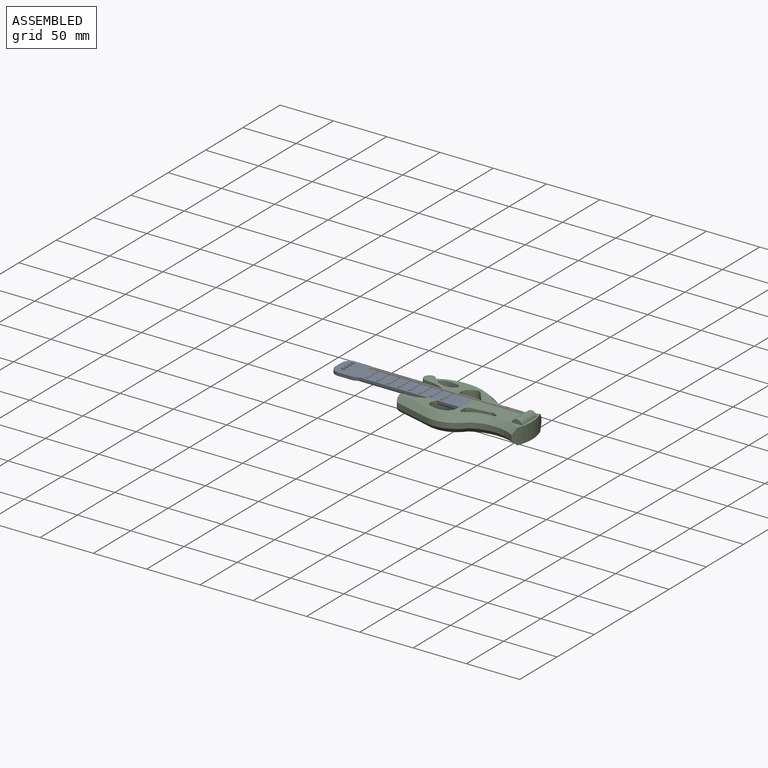
[diagram: assembled view]
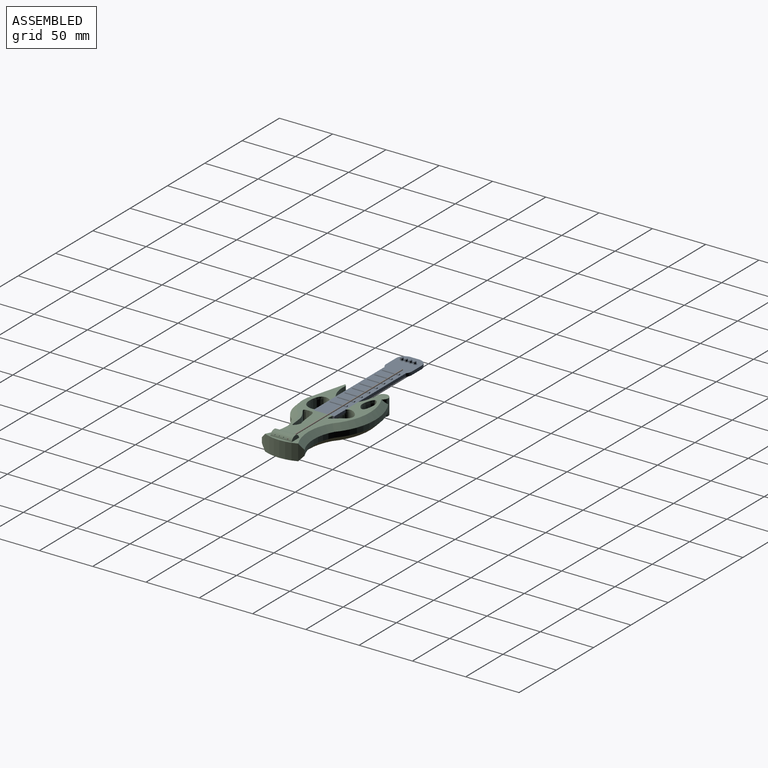
[diagram: assembled view, second angle]
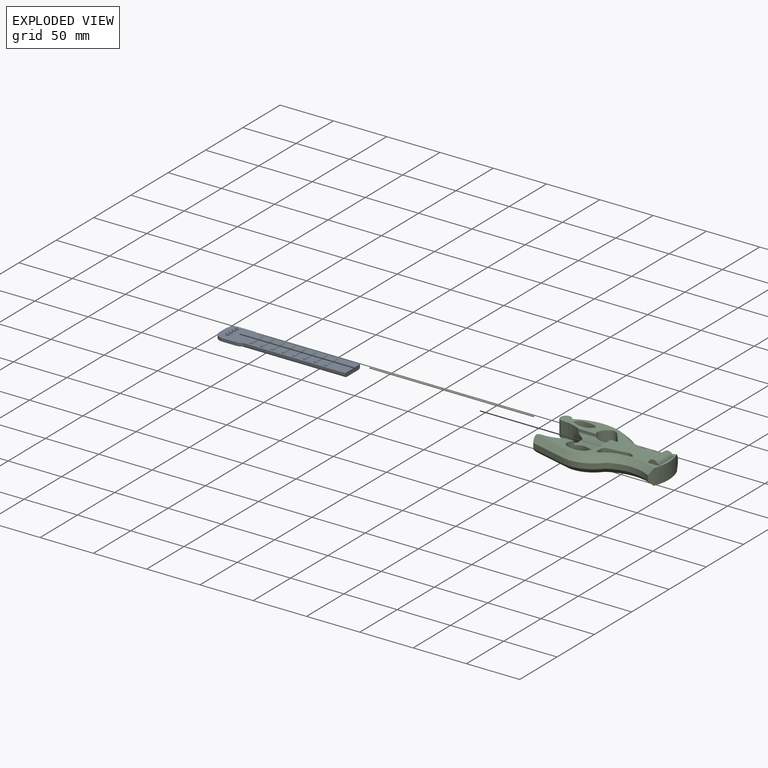
[diagram: exploded view]
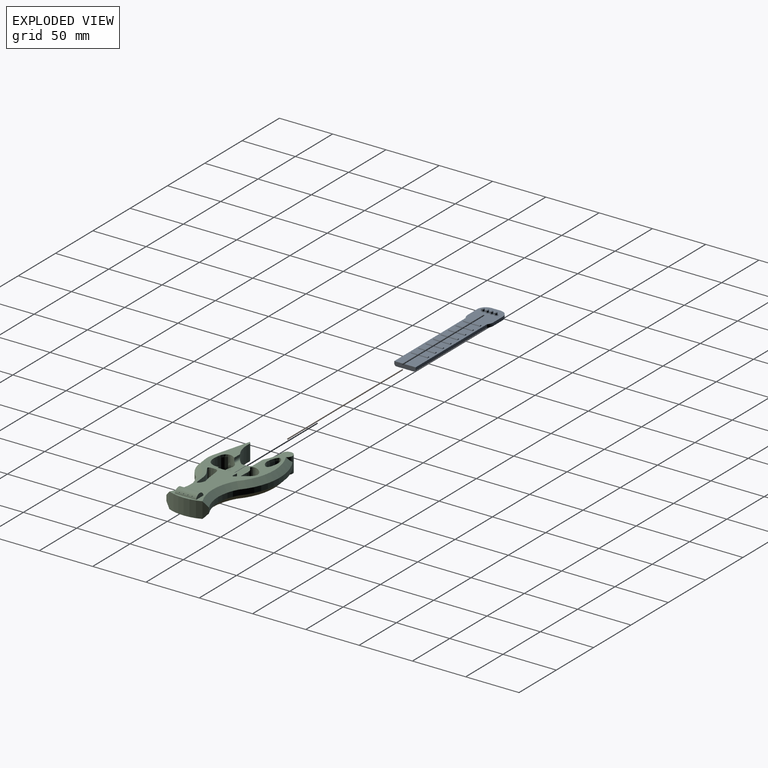
[diagram: exploded view, second angle]
ASSEMBLY  parts=3 mates=2
PART A: 64 faces, bbox 24x122x7 mm
  f0: cylinder r=1.5mm len=3mm, axis (0,0,-1), area 3.9mm2, adj f52,f59,f63
  f1: cylinder r=1.5mm len=3mm, axis (0,0,-1), area 3.9mm2, adj f53,f58,f62
  f2: cylinder r=1.5mm len=3mm, axis (0,0,-1), area 3.9mm2, adj f54,f57,f61
  f3: cylinder r=1.5mm len=3mm, axis (0,0,-1), area 3.9mm2, adj f55,f56,f60
  f4: plane 122x24mm, normal (0,0,1), area 2182.6mm2, adj f5,f9,f10,f11,f12,f14,f15,f16
  f5: plane 95.71x2mm, normal (-1,0,0), area 191.4mm2, adj f4,f6,f10,f11
  f6: cylinder r=2mm len=108mm, axis (0,1,0), area 321.4mm2, adj f5,f7,f10,f11,f13,f19
  f7: plane 105x16mm, normal (0,0,-1), area 1680mm2, adj f6,f8,f10,f19
  f8: cylinder r=2mm len=108mm, axis (0,1,0), area 321.4mm2, adj f7,f9,f10,f12,f13,f19
  f9: plane 95.71x2mm, normal (1,0,0), area 191.4mm2, adj f4,f8,f10,f12
  f10: plane 20x4mm, normal (0,-1,0), area 78.3mm2, adj f4,f5,f6,f7,f8,f9
  f11: cylinder r=8mm len=5.58mm, axis (0,0,1), area 17.5mm2, adj f4,f5,f6,f13,f14
  f12: cylinder r=8mm len=5.58mm, axis (0,0,1), area 17.5mm2, adj f4,f8,f9,f13,f15
  f13: plane 26.58x24mm, normal (0,0,-1), area 357.7mm2, adj f6,f8,f11,f12,f14,f15,f16,f17
  f14: plane 13x3mm, normal (-1,0,0), area 39mm2, adj f4,f11,f13,f18
  f15: plane 13x3mm, normal (1,0,0), area 39mm2, adj f4,f12,f13,f16
  f16: cylinder r=8mm len=8mm, axis (0,0,1), area 37.7mm2, adj f4,f13,f15,f17
  f17: plane 8x3mm, normal (0,1,0), area 24mm2, adj f4,f13,f16,f18
  f18: cylinder r=8mm len=8mm, axis (0,0,1), area 37.7mm2, adj f4,f13,f14,f17
  f19: cylinder r=5mm len=19.46mm, axis (-1,0,0), area 60.5mm2, adj f6,f7,f8,f13
  f20: cylinder r=1mm len=16mm, axis (-1,0,0), area 50.3mm2, adj f4,f21,f22
  f21: plane 2x1mm, normal (1,0,0), area 1.6mm2, adj f4,f20
  f22: plane 2x1mm, normal (-1,0,0), area 1.6mm2, adj f4,f20
  f23: cylinder r=1mm len=16mm, axis (-1,0,0), area 50.3mm2, adj f4,f24,f25
  f24: plane 2x1mm, normal (1,0,0), area 1.6mm2, adj f4,f23
  f25: plane 2x1mm, normal (-1,0,0), area 1.6mm2, adj f4,f23
  f26: cylinder r=1mm len=16mm, axis (-1,0,0), area 50.3mm2, adj f4,f27,f28
  f27: plane 2x1mm, normal (1,0,0), area 1.6mm2, adj f4,f26
  f28: plane 2x1mm, normal (-1,0,0), area 1.6mm2, adj f4,f26
  f29: cylinder r=1mm len=16mm, axis (-1,0,0), area 50.3mm2, adj f4,f30,f31
  f30: plane 2x1mm, normal (1,0,0), area 1.6mm2, adj f4,f29
  f31: plane 2x1mm, normal (-1,0,0), area 1.6mm2, adj f4,f29
  f32: cylinder r=1mm len=16mm, axis (-1,0,0), area 50.3mm2, adj f4,f33,f34
  f33: plane 2x1mm, normal (1,0,0), area 1.6mm2, adj f4,f32
  f34: plane 2x1mm, normal (-1,0,0), area 1.6mm2, adj f4,f32
  f35: cylinder r=1mm len=16mm, axis (-1,0,0), area 50.3mm2, adj f4,f36,f37
  f36: plane 2x1mm, normal (1,0,0), area 1.6mm2, adj f4,f35
  f37: plane 2x1mm, normal (-1,0,0), area 1.6mm2, adj f4,f35
  f38: cylinder r=1mm len=16mm, axis (-1,0,0), area 50.3mm2, adj f4,f39,f40
  f39: plane 2x1mm, normal (1,0,0), area 1.6mm2, adj f4,f38
  f40: plane 2x1mm, normal (-1,0,0), area 1.6mm2, adj f4,f38
  f41: cylinder r=1mm len=16mm, axis (-1,0,0), area 50.3mm2, adj f4,f42,f43
  f42: plane 2x1mm, normal (1,0,0), area 1.6mm2, adj f4,f41
  f43: plane 2x1mm, normal (-1,0,0), area 1.6mm2, adj f4,f41
  f44: cylinder r=1.5mm len=3mm, axis (0,0,-1), area 3.9mm2, adj f52,f59,f63
  f45: plane 1x1mm, normal (0,0,1), area 0.8mm2, adj f59
  f46: cylinder r=1.5mm len=3mm, axis (0,0,-1), area 3.9mm2, adj f53,f58,f62
  f47: plane 1x1mm, normal (0,0,1), area 0.8mm2, adj f58
  f48: cylinder r=1.5mm len=3mm, axis (0,0,-1), area 3.9mm2, adj f54,f57,f61
  f49: plane 1x1mm, normal (0,0,1), area 0.8mm2, adj f57
  f50: cylinder r=1.5mm len=3mm, axis (0,0,-1), area 3.9mm2, adj f55,f56,f60
  f51: plane 1x1mm, normal (0,0,1), area 0.8mm2, adj f56
  f52: torus R=2.5mm, axis (0,0,1), area 17.3mm2, adj f0,f4,f44,f53
  f53: torus R=2.5mm, axis (0,0,1), area 16.3mm2, adj f1,f4,f46,f52,f54
  f54: torus R=2.5mm, axis (0,0,1), area 16.3mm2, adj f2,f4,f48,f53,f55
  f55: torus R=2.5mm, axis (0,0,1), area 17.3mm2, adj f3,f4,f50,f54
  f56: torus R=0.5mm, axis (0,0,1), area 11.2mm2, adj f3,f50,f51
  f57: torus R=0.5mm, axis (0,0,1), area 11.2mm2, adj f2,f48,f49
  f58: torus R=0.5mm, axis (0,0,1), area 11.2mm2, adj f1,f46,f47
  f59: torus R=0.5mm, axis (0,0,1), area 11.2mm2, adj f0,f44,f45
  f60: cylinder r=0.5mm len=3mm, axis (0,-1,0), area 9.2mm2, adj f3,f50
  f61: cylinder r=0.5mm len=3mm, axis (0,-1,0), area 9.2mm2, adj f2,f48
  f62: cylinder r=0.5mm len=3mm, axis (0,-1,0), area 9.2mm2, adj f1,f46
  f63: cylinder r=0.5mm len=3mm, axis (0,-1,0), area 9.2mm2, adj f0,f44
PART B: 3 faces, bbox 1x1x154 mm
  f0: cylinder r=0.5mm len=154mm, axis (0,0,-1), area 483.8mm2, adj f1,f2
  f1: plane 1x1mm, normal (0,0,1), area 0.8mm2, adj f0
  f2: plane 1x1mm, normal (0,0,-1), area 0.8mm2, adj f0
PART C: 44 faces, bbox 115.4x65.3x19 mm
  f0: cylinder r=5mm len=20mm, axis (0,-1,0), area 133.3mm2, adj f2,f37,f38,f39,f40,f41,f42,f43
  f1: cylinder r=5mm len=20mm, axis (0,-1,0), area 133.3mm2, adj f2,f37,f38,f39,f40,f41,f42,f43
  f2: plane 115.36x55.35mm, normal (0,0,1), area 2062.4mm2, adj f0,f1,f3,f4,f6,f9,f10,f14
  f3: cylinder r=37.44mm len=26.85mm, axis (0,0,-1), area 410.1mm2, adj f2,f5,f7,f9,f31,f32,f36
  f4: cylinder r=30mm len=27.13mm, axis (0,0,-1), area 423.6mm2, adj f2,f5,f7,f10,f29,f35,f36
  f5: plane 11x6.47mm, normal (-1,-0.04,0), area 71.3mm2, adj f3,f4,f7,f36
  f6: extruded ~23.15x16.04mm, area 863.7mm2, adj f2,f7,f29,f30,f34,f35,f36
  f7: plane 115.36x55.35mm, normal (0,0,-1), area 2697.9mm2, adj f3,f4,f5,f6,f9,f10,f14,f16
  f8: cylinder r=55mm len=65mm, axis (0,0,-1), area 348.9mm2, adj f9,f15,f20,f25
  f9: cylinder r=5mm len=15mm, axis (0,0,-1), area 276.5mm2, adj f2,f3,f7,f8,f20,f25
  f10: cylinder r=4mm len=15mm, axis (0,0,-1), area 112mm2, adj f2,f4,f7,f11,f18,f21
  f11: cylinder r=3129.4mm len=30mm, axis (0,0,-1), area 155.3mm2, adj f10,f12,f18,f21
  f12: cylinder r=32.02mm len=35mm, axis (0,0,-1), area 194.3mm2, adj f11,f13,f17,f23
  f13: cylinder r=40mm len=40mm, axis (0,0,-1), area 209.4mm2, adj f12,f14,f16,f22
  f14: cylinder r=40mm len=40mm, axis (0,0,-1), area 578.2mm2, adj f2,f7,f13,f15,f16,f19,f22,f24
  f15: cylinder r=40mm len=40mm, axis (0,0,-1), area 209.4mm2, adj f8,f14,f19,f24
  f16: cone r=40mm half-angle=45deg, axis (0,0,-1), area 317.1mm2, adj f7,f13,f14,f17
  f17: cone r=32.02mm half-angle=45deg, axis (0,0,1), area 257.1mm2, adj f7,f12,f16,f18
  f18: cone r=3134.4mm half-angle=45deg, axis (0,0,-1), area 240.5mm2, adj f7,f10,f11,f17
  f19: cone r=40mm half-angle=45deg, axis (0,0,1), area 315.3mm2, adj f2,f14,f15,f20
  f20: cone r=50mm half-angle=45deg, axis (0,0,-1), area 460.1mm2, adj f2,f8,f9,f19
  f21: cone r=3129.4mm half-angle=45deg, axis (0,0,1), area 240.5mm2, adj f2,f10,f11,f23
  f22: cone r=45mm half-angle=45deg, axis (0,0,1), area 317.1mm2, adj f2,f13,f14,f23
  f23: cone r=27.02mm half-angle=45deg, axis (0,0,-1), area 257.1mm2, adj f2,f12,f21,f22
  f24: cone r=45mm half-angle=45deg, axis (0,0,-1), area 315.3mm2, adj f7,f14,f15,f25
  f25: cone r=55mm half-angle=45deg, axis (0,0,1), area 460.1mm2, adj f7,f8,f9,f24
  f26: extruded ~19.04x15mm, area 669.7mm2, adj f2,f7
  f27: extruded ~28.29x15mm, area 1017.6mm2, adj f2,f7
  f28: extruded ~22.58x15mm, area 841.9mm2, adj f2,f7,f31,f32,f33
  f29: plane 7.73x2mm, normal (0,1,0), area 15.5mm2, adj f2,f4,f6,f35
  f30: cylinder r=2mm len=4.19mm, axis (-1,0,0), area 7.1mm2, adj f6,f33,f34,f36
  f31: cylinder r=2mm len=31.84mm, axis (-1,0,0), area 60.3mm2, adj f3,f28,f32,f33,f36
  f32: plane 16.79x2mm, normal (0,-1,0), area 33.6mm2, adj f2,f3,f28,f31
  f33: plane 18.17x4mm, normal (-1,0,0), area 71.8mm2, adj f2,f28,f30,f31,f34,f36
  f34: plane 2x1.76mm, normal (0,1,0), area 3.5mm2, adj f2,f6,f30,f33
  f35: cylinder r=2mm len=9.64mm, axis (-1,0,0), area 23.1mm2, adj f4,f6,f29,f36
  f36: plane 28.75x16.24mm, normal (0,0,1), area 375.4mm2, adj f3,f4,f5,f6,f30,f31,f33,f35
  f37: plane 10x4mm, normal (0,1,0), area 30.1mm2, adj f0,f1,f2,f39
  f38: plane 10x4mm, normal (0,-1,0), area 30.1mm2, adj f0,f1,f2,f39
  f39: plane 20x0.2mm, normal (0,0,1), area 4mm2, adj f0,f1,f37,f38
  f40: cylinder r=0.5mm len=9.37mm, axis (-1,0,0), area 27.7mm2, adj f0,f1
  f41: cylinder r=0.5mm len=9.37mm, axis (-1,0,0), area 27.7mm2, adj f0,f1
  f42: cylinder r=0.5mm len=9.37mm, axis (-1,0,0), area 27.7mm2, adj f0,f1
  f43: cylinder r=0.5mm len=9.37mm, axis (-1,0,0), area 27.7mm2, adj f0,f1
PLACE A rot(axis=(0,0,1),90deg) t=(-143.66,7.8,-1.76)mm
PLACE B rot(axis=(-0.71,0,-0.71),180deg) t=(-195.52,13.8,-0.26)mm
PLACE C rot(axis=(-0.35,0.86,0.38),0deg) t=(-119.26,7.8,-9.26)mm
MATE fastened B.f0 <-> C.f43  axis (1,0,0) through (-41.52,13.8,-0.26)mm
MATE fastened A.f10 <-> C.f33  axis (1,0,0) through (-98.66,-2.2,-1.76)mm
